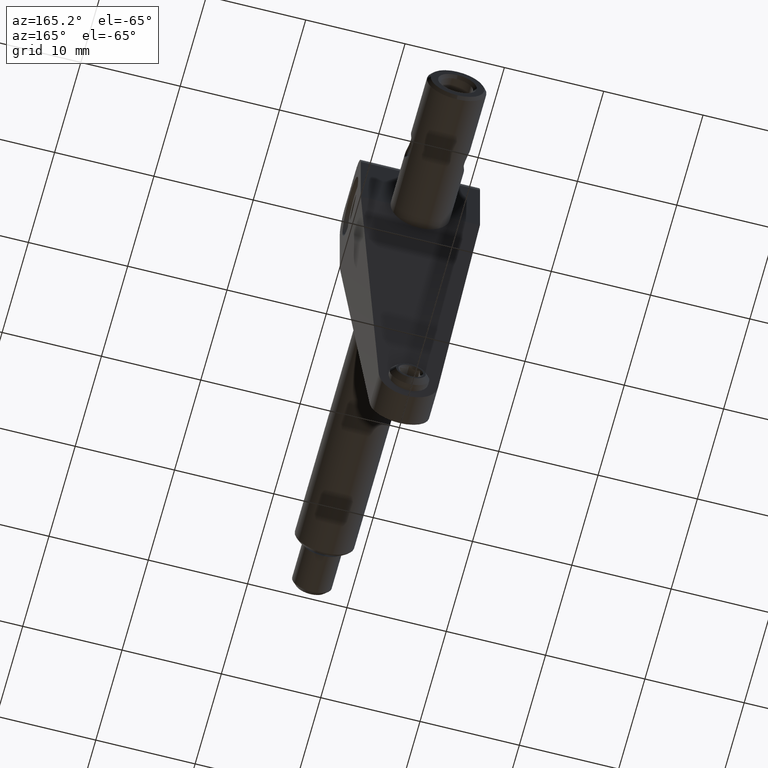
[diagram: clean part render]
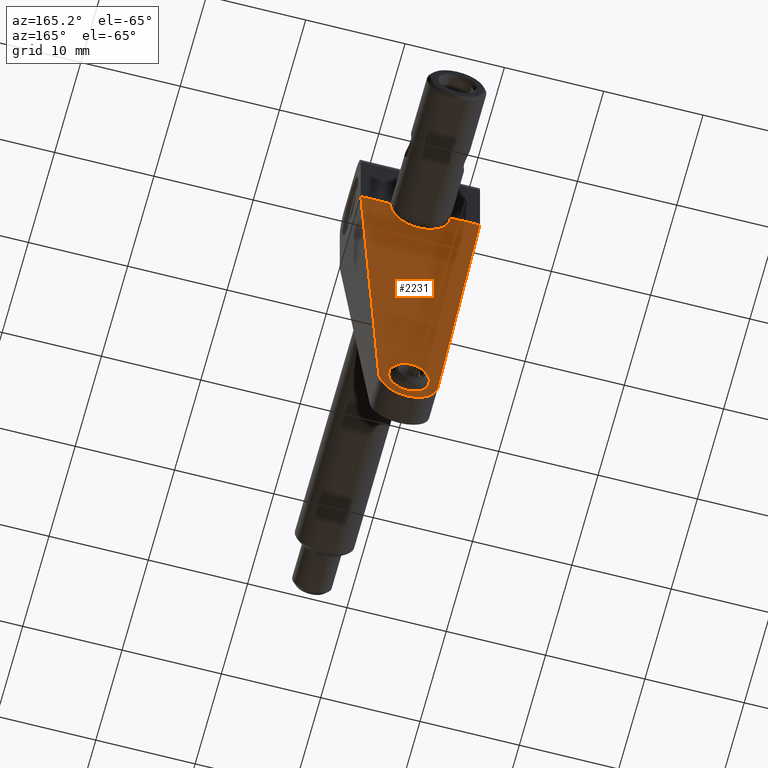
[diagram: same view with one face highlighted and labeled with its STEP entity id]
A machine part, auxiliary view. The second image highlights one B-rep face of the part: STEP entity #2231.
In plain terms, the highlighted planar face has unit normal (0, -0.9882, 0.153).
Its self-contained STEP definition (entity closure, byte-faithful):
#135 = CARTESIAN_POINT ( 'NONE',  ( 2.984557093065597133, 3.417336708130938927, -29.60400486547437993 ) ) ;
#211 = LINE ( 'NONE', #3082, #4421 ) ;
#243 = CARTESIAN_POINT ( 'NONE',  ( 3.054416292723197035, 3.523503927922773116, -28.91816462561913070 ) ) ;
#383 =( BOUNDED_CURVE ( )  B_SPLINE_CURVE ( 3, ( #1285, #1809, #5796, #2766 ),
 .UNSPECIFIED., .F., .T. ) 
 B_SPLINE_CURVE_WITH_KNOTS ( ( 4, 4 ),
 ( 4.813898172835370914, 7.752472441523801550 ),
 .UNSPECIFIED. ) 
 CURVE ( )  GEOMETRIC_REPRESENTATION_ITEM ( )  RATIONAL_B_SPLINE_CURVE ( ( 1.000000000000000000, 0.4008899701053723619, 0.4008899701053723619, 1.000000000000000000 ) ) 
 REPRESENTATION_ITEM ( '' )  );
#436 = CARTESIAN_POINT ( 'NONE',  ( -3.054416292723197923, 3.523503927922773116, -28.91816462561913070 ) ) ;
#505 = EDGE_LOOP ( 'NONE', ( #1186, #6119 ) ) ;
#724 = VECTOR ( 'NONE', #3275, 1000.000000000000114 ) ;
#825 = FACE_BOUND ( 'NONE', #505, .T. ) ;
#871 = AXIS2_PLACEMENT_3D ( 'NONE', #5613, #6211, #4612 ) ;
#941 = EDGE_CURVE ( 'NONE', #1173, #1329, #4335, .T. ) ;
#943 = ORIENTED_EDGE ( 'NONE', *, *, #1564, .F. ) ;
#1028 = CARTESIAN_POINT ( 'NONE',  ( -3.000000000000025757, 8.000000000000000000, 2.010311009501950633E-15 ) ) ;
#1173 = VERTEX_POINT ( 'NONE', #4423 ) ;
#1186 = ORIENTED_EDGE ( 'NONE', *, *, #1193, .F. ) ;
#1193 = EDGE_CURVE ( 'NONE', #1329, #1173, #4883, .T. ) ;
#1201 = CARTESIAN_POINT ( 'NONE',  ( -2.984557093065598465, 3.417336708130938927, -29.60400486547437993 ) ) ;
#1285 = CARTESIAN_POINT ( 'NONE',  ( -2.984557093065598465, 3.417336708130938927, -29.60400486547437993 ) ) ;
#1329 = VERTEX_POINT ( 'NONE', #6062 ) ;
#1346 = ORIENTED_EDGE ( 'NONE', *, *, #4861, .F. ) ;
#1513 = CARTESIAN_POINT ( 'NONE',  ( 3.000000000000025757, 8.000000000000000000, 2.447461325448106416E-15 ) ) ;
#1564 = EDGE_CURVE ( 'NONE', #3167, #4311, #211, .T. ) ;
#1572 = LINE ( 'NONE', #243, #724 ) ;
#1643 = CARTESIAN_POINT ( 'NONE',  ( -1.650000000000001021, 3.464396284829728501, -29.30000000000019966 ) ) ;
#1645 = VERTEX_POINT ( 'NONE', #135 ) ;
#1687 = CARTESIAN_POINT ( 'NONE',  ( 1.650000000000000133, 3.464396284829728501, -29.30000000000019966 ) ) ;
#1808 = CARTESIAN_POINT ( 'NONE',  ( -6.000000000000052403, 8.000000000000000000, 2.572361415718436921E-15 ) ) ;
#1809 = CARTESIAN_POINT ( 'NONE',  ( -2.481609515183692327, 2.652991477918302365, -34.54167505264804561 ) ) ;
#1908 = DIRECTION ( 'NONE',  ( 0.1001542559867147214, -0.1522075683738858543, -0.9832608916953101685 ) ) ;
#1981 = CARTESIAN_POINT ( 'NONE',  ( -3.000000000000025757, 8.000000000000000000, 2.010311009501950633E-15 ) ) ;
#2026 = VERTEX_POINT ( 'NONE', #4462 ) ;
#2231 = ADVANCED_FACE ( 'NONE', ( #825, #5012 ), #3029, .F. ) ;
#2413 = VECTOR ( 'NONE', #1908, 1000.000000000000114 ) ;
#2765 = DIRECTION ( 'NONE',  ( -1.000000000000000000, -1.787893627723953431E-17, 1.387778780781449990E-17 ) ) ;
#2766 = CARTESIAN_POINT ( 'NONE',  ( 2.984557093065597133, 3.417336708130938927, -29.60400486547437993 ) ) ;
#2811 = CARTESIAN_POINT ( 'NONE',  ( 6.000000000000052403, 8.000000000000000000, 2.405827962024662651E-15 ) ) ;
#3029 = PLANE ( 'NONE',  #871 ) ;
#3082 = CARTESIAN_POINT ( 'NONE',  ( 6.000000000000052403, 8.000000000000000000, 2.405827962024662651E-15 ) ) ;
#3167 = VERTEX_POINT ( 'NONE', #1028 ) ;
#3275 = DIRECTION ( 'NONE',  ( 0.1001542559867147492, 0.1522075683738858543, 0.9832608916953101685 ) ) ;
#3359 = EDGE_LOOP ( 'NONE', ( #943, #1346, #4002, #5217, #5790, #3969 ) ) ;
#3422 = EDGE_CURVE ( 'NONE', #5851, #1645, #383, .T. ) ;
#3573 = EDGE_CURVE ( 'NONE', #1645, #6178, #1572, .T. ) ;
#3637 = CARTESIAN_POINT ( 'NONE',  ( 1.649999999999999689, 3.975232198142417683, -26.00000000000019895 ) ) ;
#3781 = CARTESIAN_POINT ( 'NONE',  ( 6.000000000000052403, 8.000000000000000000, 2.405827962024662651E-15 ) ) ;
#3902 = EDGE_CURVE ( 'NONE', #4311, #5851, #6392, .T. ) ;
#3969 = ORIENTED_EDGE ( 'NONE', *, *, #3902, .F. ) ;
#4002 = ORIENTED_EDGE ( 'NONE', *, *, #4537, .F. ) ;
#4311 = VERTEX_POINT ( 'NONE', #1808 ) ;
#4335 =( BOUNDED_CURVE ( )  B_SPLINE_CURVE ( 3, ( #1643, #5109, #3637, #1687 ),
 .UNSPECIFIED., .F., .T. ) 
 B_SPLINE_CURVE_WITH_KNOTS ( ( 4, 4 ),
 ( 1.570796326794896558, 4.712388980384689674 ),
 .UNSPECIFIED. ) 
 CURVE ( )  GEOMETRIC_REPRESENTATION_ITEM ( )  RATIONAL_B_SPLINE_CURVE ( ( 1.000000000000000000, 0.3333333333333333703, 0.3333333333333333703, 1.000000000000000000 ) ) 
 REPRESENTATION_ITEM ( '' )  );
#4421 = VECTOR ( 'NONE', #5491, 1000.000000000000000 ) ;
#4423 = CARTESIAN_POINT ( 'NONE',  ( -1.650000000000001021, 3.464396284829728501, -29.30000000000019966 ) ) ;
#4462 = CARTESIAN_POINT ( 'NONE',  ( 3.000000000000025757, 8.000000000000000000, 2.447461325448106416E-15 ) ) ;
#4537 = EDGE_CURVE ( 'NONE', #6178, #2026, #6161, .T. ) ;
#4612 = DIRECTION ( 'NONE',  ( 1.097938178992431932E-17, 0.1529767474352747847, 0.9882297884318829162 ) ) ;
#4819 = VECTOR ( 'NONE', #2765, 1000.000000000000000 ) ;
#4861 = EDGE_CURVE ( 'NONE', #2026, #3167, #5728, .T. ) ;
#4883 =( BOUNDED_CURVE ( )  B_SPLINE_CURVE ( 3, ( #4917, #5973, #6393, #5376 ),
 .UNSPECIFIED., .F., .T. ) 
 B_SPLINE_CURVE_WITH_KNOTS ( ( 4, 4 ),
 ( 4.712388980384689674, 7.853981633974482790 ),
 .UNSPECIFIED. ) 
 CURVE ( )  GEOMETRIC_REPRESENTATION_ITEM ( )  RATIONAL_B_SPLINE_CURVE ( ( 1.000000000000000000, 0.3333333333333333703, 0.3333333333333333703, 1.000000000000000000 ) ) 
 REPRESENTATION_ITEM ( '' )  );
#4917 = CARTESIAN_POINT ( 'NONE',  ( 1.650000000000000133, 3.464396284829728501, -29.30000000000019966 ) ) ;
#4989 = CARTESIAN_POINT ( 'NONE',  ( 3.000000000000019096, 7.071207430340558986, -6.000000000000038192 ) ) ;
#5012 = FACE_OUTER_BOUND ( 'NONE', #3359, .T. ) ;
#5109 = CARTESIAN_POINT ( 'NONE',  ( -1.650000000000001243, 3.975232198142417683, -26.00000000000019895 ) ) ;
#5217 = ORIENTED_EDGE ( 'NONE', *, *, #3573, .F. ) ;
#5376 = CARTESIAN_POINT ( 'NONE',  ( -1.650000000000001021, 3.464396284829728501, -29.30000000000019966 ) ) ;
#5491 = DIRECTION ( 'NONE',  ( -1.000000000000000000, -1.787893627723953431E-17, 1.387778780781449990E-17 ) ) ;
#5506 = CARTESIAN_POINT ( 'NONE',  ( -3.000000000000019096, 7.071207430340558986, -6.000000000000038192 ) ) ;
#5613 = CARTESIAN_POINT ( 'NONE',  ( 6.000000000000052403, 8.000000000000000000, 2.405827962024662651E-15 ) ) ;
#5728 =( BOUNDED_CURVE ( )  B_SPLINE_CURVE ( 3, ( #1513, #4989, #5506, #1981 ),
 .UNSPECIFIED., .F., .F. ) 
 B_SPLINE_CURVE_WITH_KNOTS ( ( 4, 4 ),
 ( 1.570796326794896780, 4.712388980384689674 ),
 .UNSPECIFIED. ) 
 CURVE ( )  GEOMETRIC_REPRESENTATION_ITEM ( )  RATIONAL_B_SPLINE_CURVE ( ( 1.000000000000000000, 0.3333333333333333703, 0.3333333333333333703, 1.000000000000000000 ) ) 
 REPRESENTATION_ITEM ( '' )  );
#5790 = ORIENTED_EDGE ( 'NONE', *, *, #3422, .F. ) ;
#5796 = CARTESIAN_POINT ( 'NONE',  ( 2.481609515183690107, 2.652991477918302365, -34.54167505264804561 ) ) ;
#5851 = VERTEX_POINT ( 'NONE', #1201 ) ;
#5973 = CARTESIAN_POINT ( 'NONE',  ( 1.650000000000001021, 2.953560371517038874, -32.60000000000020037 ) ) ;
#6062 = CARTESIAN_POINT ( 'NONE',  ( 1.650000000000000133, 3.464396284829728501, -29.30000000000019966 ) ) ;
#6119 = ORIENTED_EDGE ( 'NONE', *, *, #941, .F. ) ;
#6161 = LINE ( 'NONE', #2811, #4819 ) ;
#6178 = VERTEX_POINT ( 'NONE', #3781 ) ;
#6211 = DIRECTION ( 'NONE',  ( 1.979147625508002025E-17, -0.9882297884318830272, 0.1529767474352748124 ) ) ;
#6392 = LINE ( 'NONE', #436, #2413 ) ;
#6393 = CARTESIAN_POINT ( 'NONE',  ( -1.650000000000001021, 2.953560371517038874, -32.60000000000020037 ) ) ;